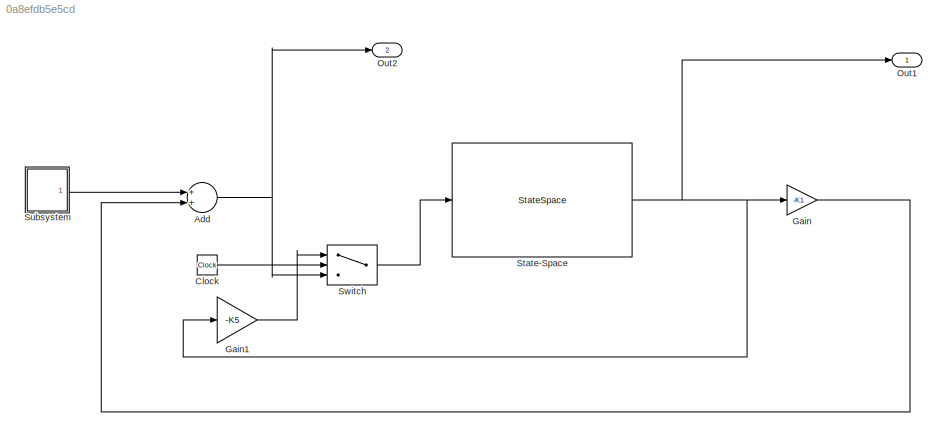
MODEL slx_0a8efdb5e5cd
KIND model
CONFIG AbsTol = auto
CONFIG EnableMultiTasking = off
CONFIG FixedStep = 0.0005
CONFIG MaxStep = auto
CONFIG MinStep = auto
CONFIG RelTol = 1e-3
CONFIG SampleTimeConstraint = Unconstrained
CONFIG Solver = FixedStepAuto
CONFIG SolverName = FixedStepAuto
CONFIG StartTime = 0.0
CONFIG StopTime = 10
BLOCK [Sum] Add
  InputSameDT = off
  OutDataTypeStr = Inherit: Inherit via internal rule
  Ports = [2, 1]
  SaturateOnIntegerOverflow = off
BLOCK [Clock] Clock
BLOCK [Gain] Gain
  Gain = -K1
  Multiplication = Matrix(K*u)
  OutDataTypeStr = Inherit: Inherit via internal rule
  ParamDataTypeStr = Inherit: Inherit via internal rule
  SaturateOnIntegerOverflow = off
BLOCK [Gain] Gain1
  Gain = -K5
  Multiplication = Matrix(K*u)
  OutDataTypeStr = Inherit: Inherit via internal rule
  ParamDataTypeStr = Inherit: Inherit via internal rule
  SaturateOnIntegerOverflow = off
BLOCK [Outport] Out1
  IconDisplay = Port number
BLOCK [Outport] Out2
  IconDisplay = Port number
  Port = 2
BLOCK [StateSpace] State-Space
  A = [-0.0665 11.5 0 0;0 -2.5 2.5 0;-9.5 0 -13.736 -13.736;0.6 0 0 0]
  B = [0;0;13.736;0]
  C = eye(4)
  D = [0;0;0;0]
  InitialCondition = [0;0.1;0;0]
  Ports = [1, 1]
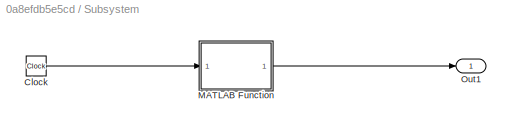
BLOCK [SubSystem] Subsystem
  Ports = [0, 1]
  RequestExecContextInheritance = off
BLOCK [Clock] Subsystem/Clock
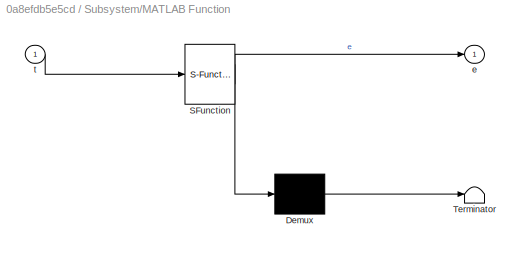
BLOCK [SubSystem] Subsystem/MATLAB Function
  ErrorFcn = Stateflow.Translate.translate
  PermitHierarchicalResolution = ExplicitOnly
  Ports = [1, 1]
  RequestExecContextInheritance = off
  SFBlockType = MATLAB Function
  TreatAsAtomicUnit = on
BLOCK [Demux] Subsystem/MATLAB Function/ Demux 
  Outputs = 1
  Ports = [1, 1]
BLOCK [S-Function] Subsystem/MATLAB Function/ SFunction 
  EnableBusSupport = on
  FunctionName = sf_sfun
  PortCounts = [1 2]
  Ports = [1, 2]
  SFcnIsStateOwnerBlock = off
  SFunctionDeploymentMode = off
  Tag = Stateflow S-Function PI 2
BLOCK [Terminator] Subsystem/MATLAB Function/ Terminator 
BLOCK [Outport] Subsystem/MATLAB Function/e
  IconDisplay = Port number
BLOCK [Inport] Subsystem/MATLAB Function/t
  IconDisplay = Port number
BLOCK [Outport] Subsystem/Out1
  IconDisplay = Port number
BLOCK [Switch] Switch
  Criteria = u2 > Threshold
  InputSameDT = off
  SaturateOnIntegerOverflow = off
  Threshold = 3
NET Add:1 -> Out2:1, Switch:3
LINE Clock:1 -> Switch:2
LINE Gain1:1 -> Switch:1
LINE Gain:1 -> Add:2
NET State-Space:1 -> Gain1:1, Gain:1, Out1:1
LINE Subsystem/Clock:1 -> Subsystem/MATLAB Function:1
LINE Subsystem/MATLAB Function:1 -> Subsystem/Out1:1
LINE Subsystem:1 -> Add:1
LINE Switch:1 -> State-Space:1
note: NET lines group one-source signal fan-out (src -> all destinations, sorted); 1:1 wires keep LINE
CHART Subsystem/MATLAB Function states=1 transitions=1
  STATE_LABEL 'eML_blk_kernel()'
  STATE_LABEL 'SCRIPT:\nfunction e = fcn(t)\nw=[111.1412\n   11.2334\n    5.0726\n  -64.4173\n   -2.6645\n   29.7744\n   42.9925\n  -25.0763\n  -31.8152\n  117.1157\n -110.9427\n   92.4403\n   99.1888\n   71.0841\n  -96.3091\n  -57.1509\n  -39.5144\n   43.1347\n  -87.2272\n   53.0946\n  -94.3772\n   36.9018\n   -1.3983\n   66.9724\n   51.6089\n   96.8929\n   93.8214\n  -39.8009\n   47.6990\n  -72.5256\n -112.6702\n   58.5778\n    0.0054\n   -4.81...<+778ch>'
